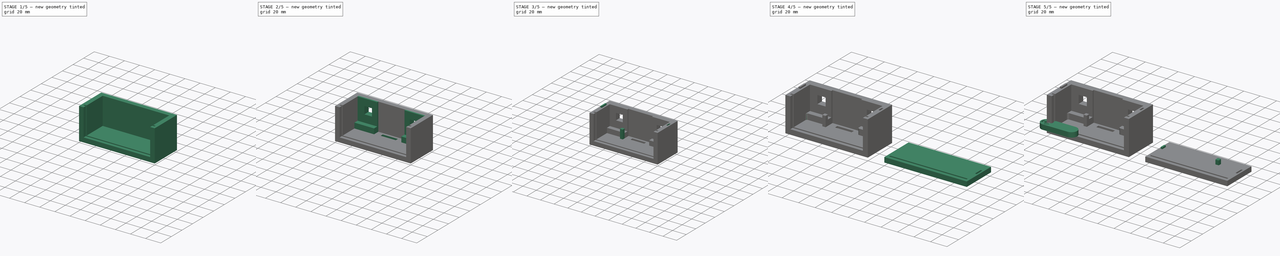
[diagram: build sequence overview — one tinted view per stage of 5, left to right]
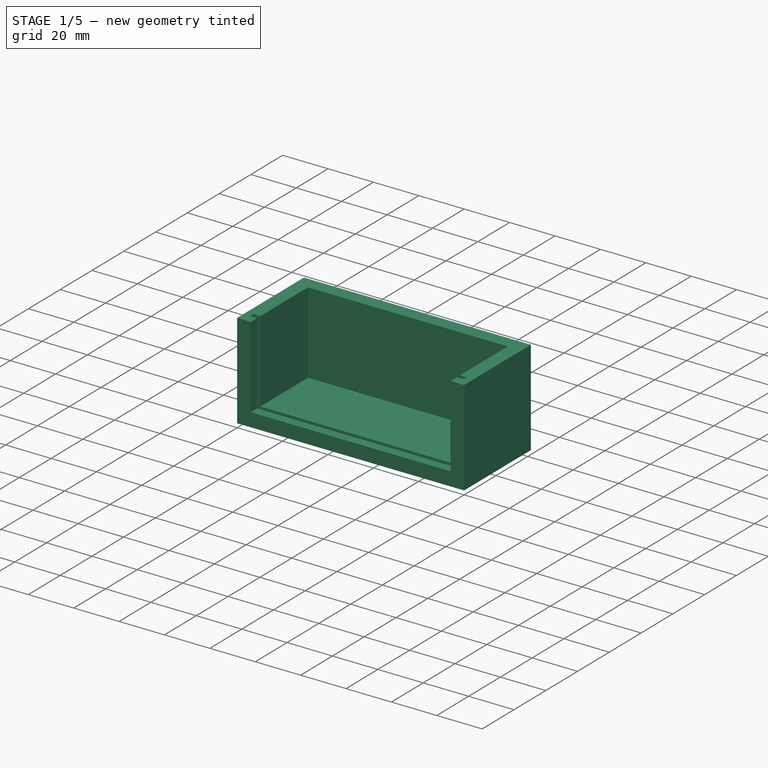
[diagram: stage 1 of 5 — iso view after this stage's code; geometry added in this stage tinted green]
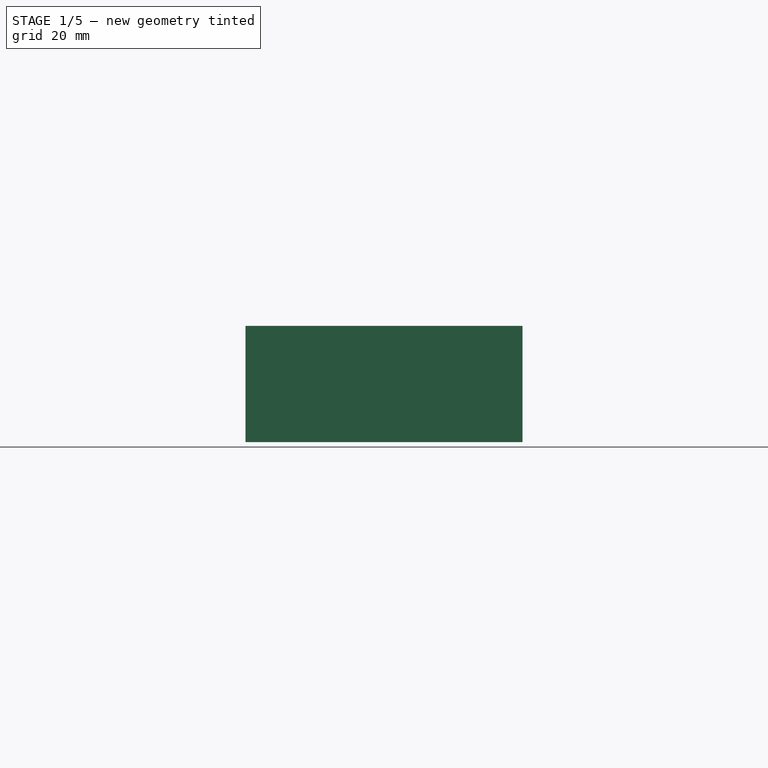
[diagram: stage 1 of 5 — front view after this stage's code; geometry added in this stage tinted green]
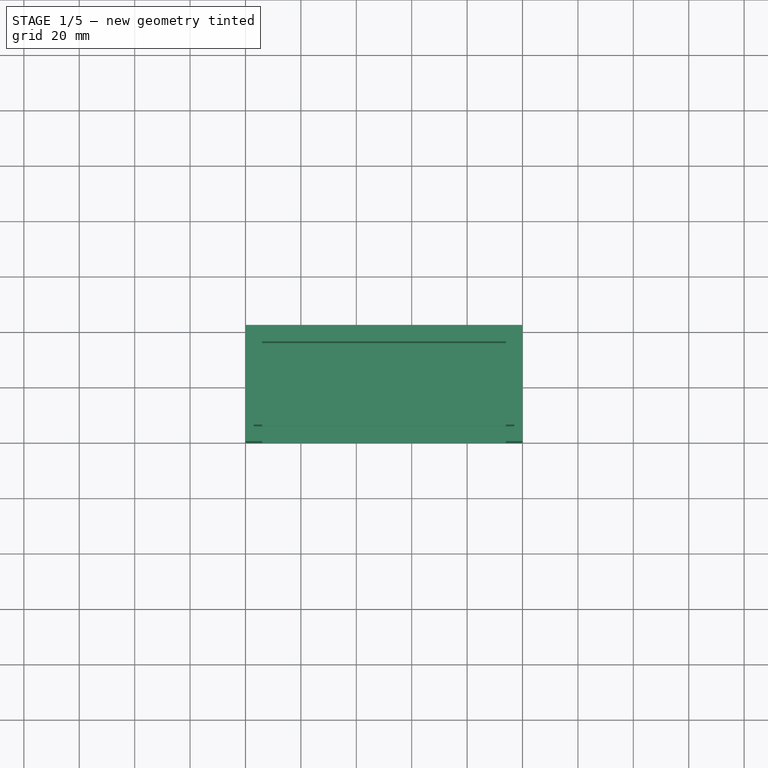
[diagram: stage 1 of 5 — top view after this stage's code; geometry added in this stage tinted green]
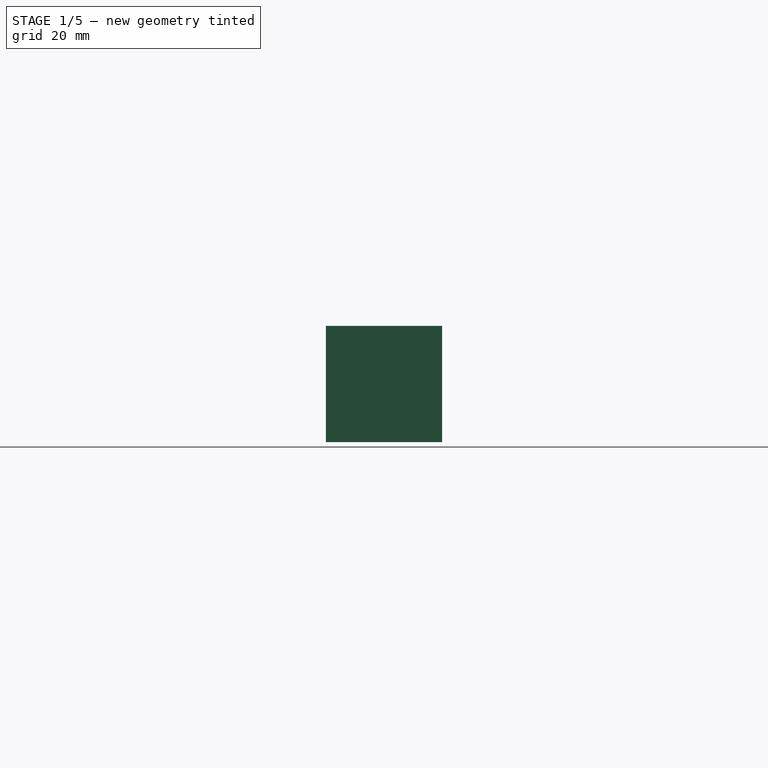
[diagram: stage 1 of 5 — right view after this stage's code; geometry added in this stage tinted green]
FCSTD DOCUMENT  (FreeCAD 0.18R4 (GitTag))
Label: Unununium Camera Casing
License: All rights reserved
LicenseURL: http://en.wikipedia.org/wiki/All_rights_reserved
objects: Sketcher::SketchObject×22, PartDesign::Pad×12, PartDesign::Pocket×10, PartDesign::LinearPattern×4, PartDesign::Body×3, Part::Fillet×3, Part::Box×2, PartDesign::PolarPattern×2, PartDesign::ShapeBinder×1, PartDesign::Plane×1, Part::Cut×1, PartDesign::FeatureBase×1, PartDesign::Line×1
note: 85 computed .brp shape members not serialized (recipe doc carries the construction recipe); baked Part::Feature solids carry a one-line shape summary decoded from their .brp

FEATURE [Sketcher::SketchObject] Sketch
  MapMode = 5
  Support = -> [XY_Plane]
  sketch-geometry (4):
    g0: LineSegment StartX=0 StartY=0 StartZ=0 EndX=100 EndY=0 EndZ=0
    g1: LineSegment StartX=100 StartY=0 StartZ=0 EndX=100 EndY=42 EndZ=0
    g2: LineSegment StartX=100 StartY=42 StartZ=0 EndX=0 EndY=42 EndZ=0
    g3: LineSegment StartX=0 StartY=42 StartZ=0 EndX=0 EndY=0 EndZ=0
  constraints (11):
    c: Coincident(g0,g1)
    c: Coincident(g1,g2)
    c: Coincident(g2,g3)
    c: Coincident(g3,g0)
    c: Horizontal(g0)
    c: Horizontal(g2)
    c: Vertical(g1)
    c: Vertical(g3)
    c: DistanceX(g2,g2) = 100
    c: Coincident(g0,g-1)
    c: DistanceY(g3,g3) = 42
FEATURE [PartDesign::Pad] Pad
  Length = 6
  Length2 = 100
  Profile = -> Sketch
  Reversed = true
  Type = 0
FEATURE [Sketcher::SketchObject] Sketch001
  ExternalGeometry = -> [Pad]
  MapMode = 5
  Support = -> [Pad]
  sketch-geometry (4):
    g0: LineSegment StartX=3 StartY=6 StartZ=0 EndX=97 EndY=6 EndZ=0
    g1: LineSegment StartX=97 StartY=6 StartZ=0 EndX=97 EndY=4 EndZ=0
    g2: LineSegment StartX=97 StartY=4 StartZ=0 EndX=3 EndY=4 EndZ=0
    g3: LineSegment StartX=3 StartY=4 StartZ=0 EndX=3 EndY=6 EndZ=0
  constraints (12):
    c: Coincident(g0,g1)
    c: Coincident(g1,g2)
    c: Coincident(g2,g3)
    c: Coincident(g3,g0)
    c: Horizontal(g0)
    c: Horizontal(g2)
    c: Vertical(g1)
    c: Vertical(g3)
    c: DistanceX(g-1,g2) = 3
    c: DistanceX(g1,g-3) = 3
    c: DistanceY(g-1,g2) = 4
    c: DistanceY(g3,g3) = 2
FEATURE [PartDesign::Pocket] Pocket
  BaseFeature = -> Pad
  Length = 3
  Length2 = 100
  Profile = -> Sketch001
  Type = 0
FEATURE [Sketcher::SketchObject] Sketch002
  ExternalGeometry = -> [Pocket]
  MapMode = 5
  Support = -> [Pocket]
  sketch-geometry (4):
    g0: LineSegment StartX=0 StartY=42 StartZ=0 EndX=100 EndY=42 EndZ=0
    g1: LineSegment StartX=100 StartY=42 StartZ=0 EndX=100 EndY=36 EndZ=0
    g2: LineSegment StartX=100 StartY=36 StartZ=0 EndX=0 EndY=36 EndZ=0
    g3: LineSegment StartX=0 StartY=36 StartZ=0 EndX=0 EndY=42 EndZ=0
  constraints (11):
    c: Coincident(g0,g1)
    c: Coincident(g1,g2)
    c: Coincident(g2,g3)
    c: Coincident(g3,g0)
    c: Horizontal(g0)
    c: Horizontal(g2)
    c: Vertical(g1)
    c: Vertical(g3)
    c: Coincident(g0,g-4)
    c: DistanceY(g3,g3) = 6
    c: DistanceX(g0,g0) = 100
FEATURE [PartDesign::Pad] Pad001
  BaseFeature = -> Pocket
  Length = 36
  Length2 = 100
  Profile = -> Sketch002
  Type = 0
FEATURE [Sketcher::SketchObject] Sketch003
  ExternalGeometry = -> [Pad001]
  MapMode = 5
  Support = -> [Pad001]
  sketch-geometry (4):
    g0: LineSegment StartX=0 StartY=36 StartZ=0 EndX=6 EndY=36 EndZ=0
    g1: LineSegment StartX=6 StartY=36 StartZ=0 EndX=6 EndY=0 EndZ=0
    g2: LineSegment StartX=6 StartY=0 StartZ=0 EndX=0 EndY=0 EndZ=0
    g3: LineSegment StartX=0 StartY=0 StartZ=0 EndX=0 EndY=36 EndZ=0
  constraints (11):
    c: Coincident(g0,g1)
    c: Coincident(g1,g2)
    c: Coincident(g2,g3)
    c: Coincident(g3,g0)
    c: Horizontal(g0)
    c: Horizontal(g2)
    c: Vertical(g1)
    c: Vertical(g3)
    c: Coincident(g2,g-1)
    c: DistanceX(g2,g2) = 6
    c: DistanceY(g3,g3) = 36
FEATURE [PartDesign::Pad] Pad002
  BaseFeature = -> Pad001
  Length = 36
  Length2 = 100
  Profile = -> Sketch003
  Type = 0
FEATURE [Sketcher::SketchObject] Sketch004
  ExternalGeometry = -> [Pad002]
  MapMode = 5
  Placement = pos=(6,0,0) rot=(0.57735,0.57735,0.57735;2.0944rad)
  Support = -> [Pad002]
  sketch-geometry (4):
    g0: LineSegment StartX=4 StartY=36 StartZ=0 EndX=6 EndY=36 EndZ=0
    g1: LineSegment StartX=6 StartY=36 StartZ=0 EndX=6 EndY=0 EndZ=0
    g2: LineSegment StartX=6 StartY=0 StartZ=0 EndX=4 EndY=0 EndZ=0
    g3: LineSegment StartX=4 StartY=0 StartZ=0 EndX=4 EndY=36 EndZ=0
  constraints (11):
    c: Coincident(g0,g1)
    c: Coincident(g1,g2)
    c: Coincident(g2,g3)
    c: Coincident(g3,g0)
    c: Horizontal(g0)
    c: Horizontal(g2)
    c: Vertical(g1)
    c: Vertical(g3)
    c: Coincident(g1,g-3)
    c: DistanceX(g0,g0) = 2
    c: DistanceY(g1,g1) = 36
FEATURE [PartDesign::Pocket] Pocket001
  BaseFeature = -> Pad002
  Length = 3
  Length2 = 100
  Profile = -> Sketch004
  Type = 0
FEATURE [PartDesign::LinearPattern] LinearPattern
  BaseFeature = -> Pocket001
  Direction = -> Sketch003 [H_Axis]
  Length = 94
  Occurrences = 2
  Originals = -> [Pad002]
FEATURE [Sketcher::SketchObject] Sketch005
  ExternalGeometry = -> [LinearPattern]
  MapMode = 5
  Placement = pos=(94,0,0) rot=(0.57735,-0.57735,-0.57735;2.0944rad)
  Support = -> [LinearPattern]
  sketch-geometry (4):
    g0: LineSegment StartX=-4 StartY=0 StartZ=0 EndX=-6 EndY=0 EndZ=0
    g1: LineSegment StartX=-6 StartY=0 StartZ=0 EndX=-6 EndY=36 EndZ=0
    g2: LineSegment StartX=-6 StartY=36 StartZ=0 EndX=-4 EndY=36 EndZ=0
    g3: LineSegment StartX=-4 StartY=36 StartZ=0 EndX=-4 EndY=0 EndZ=0
  constraints (11):
    c: Coincident(g0,g1)
    c: Coincident(g1,g2)
    c: Coincident(g2,g3)
    c: Coincident(g3,g0)
    c: Horizontal(g0)
    c: Horizontal(g2)
    c: Vertical(g1)
    c: Vertical(g3)
    c: DistanceX(g2,g2) = 2
    c: Coincident(g-3,g0)
    c: DistanceY(g3,g3) = 36
FEATURE [PartDesign::Pocket] Pocket002
  BaseFeature = -> LinearPattern
  Length = 3
  Length2 = 100
  Profile = -> Sketch005
  Type = 0
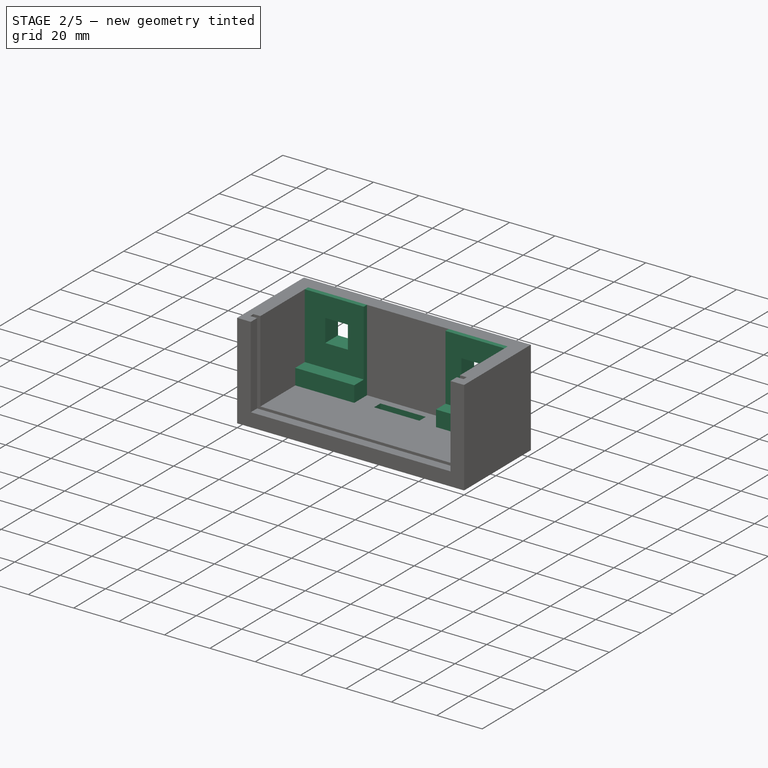
[diagram: stage 2 of 5 — iso view after this stage's code; geometry added in this stage tinted green]
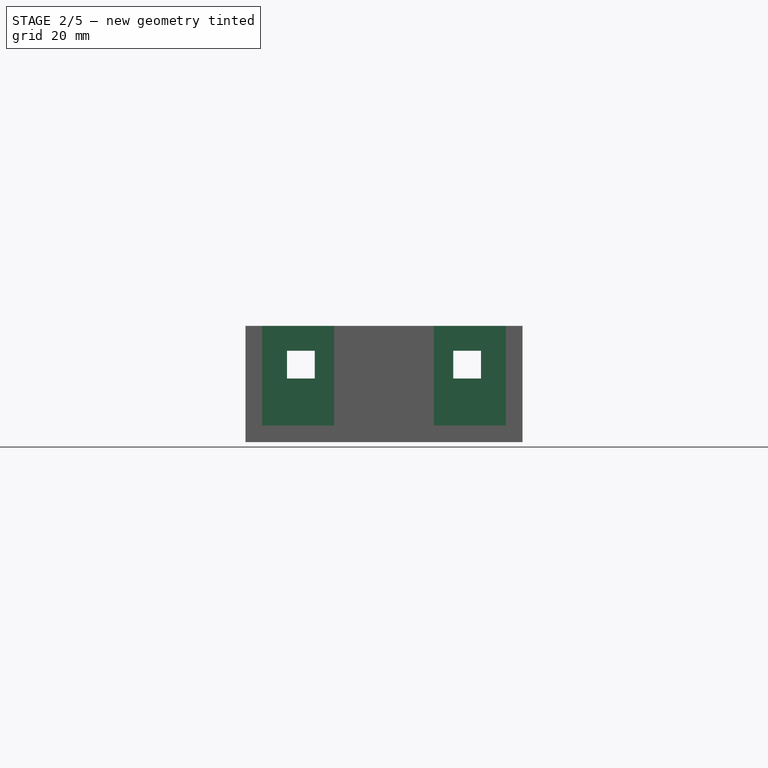
[diagram: stage 2 of 5 — front view after this stage's code; geometry added in this stage tinted green]
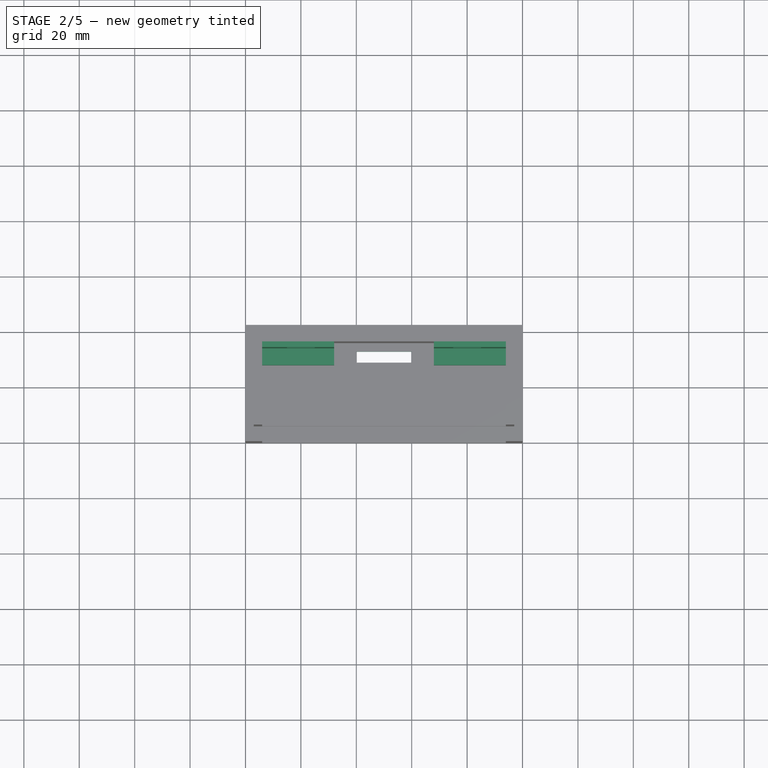
[diagram: stage 2 of 5 — top view after this stage's code; geometry added in this stage tinted green]
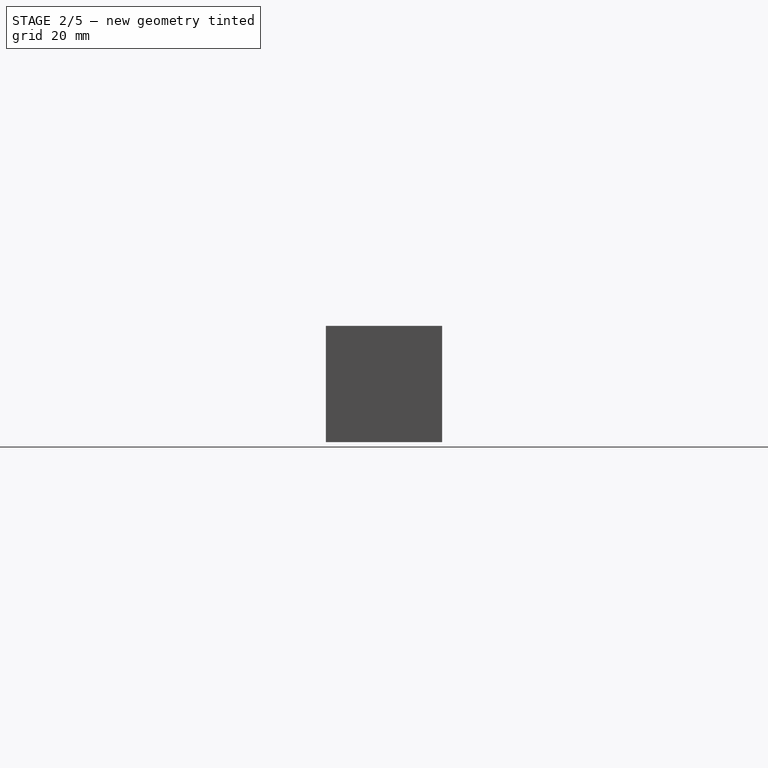
[diagram: stage 2 of 5 — right view after this stage's code; geometry added in this stage tinted green]
FEATURE [Sketcher::SketchObject] Sketch006
  ExternalGeometry = -> [Pocket002]
  MapMode = 5
  Support = -> [Pocket002]
  sketch-geometry (4):
    g0: LineSegment StartX=40 StartY=33 StartZ=0 EndX=60 EndY=33 EndZ=0
    g1: LineSegment StartX=60 StartY=33 StartZ=0 EndX=60 EndY=29 EndZ=0
    g2: LineSegment StartX=60 StartY=29 StartZ=0 EndX=40 EndY=29 EndZ=0
    g3: LineSegment StartX=40 StartY=29 StartZ=0 EndX=40 EndY=33 EndZ=0
  constraints (12):
    c: Coincident(g0,g1)
    c: Coincident(g1,g2)
    c: Coincident(g2,g3)
    c: Coincident(g3,g0)
    c: Horizontal(g0)
    c: Horizontal(g2)
    c: Vertical(g1)
    c: Vertical(g3)
    c: DistanceX(g2,g2) = 20
    c: DistanceY(g3,g3) = 4
    c: DistanceX(g-1,g2) = 40
    c: DistanceY(g0,g-3) = 9
FEATURE [PartDesign::Pocket] Pocket003
  BaseFeature = -> Pocket002
  Length = 0
  Length2 = 100
  Profile = -> Sketch006
  Type = 3
  UpToFace = -> Pocket002 [Face7]
FEATURE [Sketcher::SketchObject] Sketch007
  ExternalGeometry = -> [Pocket003]
  MapMode = 5
  Placement = pos=(0,36,0) rot=(1,0,0;1.5708rad)
  Support = -> [Pocket003]
  sketch-geometry (4):
    g0: LineSegment StartX=6 StartY=0 StartZ=0 EndX=32 EndY=0 EndZ=0
    g1: LineSegment StartX=32 StartY=0 StartZ=0 EndX=32 EndY=7 EndZ=0
    g2: LineSegment StartX=32 StartY=7 StartZ=0 EndX=6 EndY=7 EndZ=0
    g3: LineSegment StartX=6 StartY=7 StartZ=0 EndX=6 EndY=0 EndZ=0
  constraints (11):
    c: Coincident(g0,g1)
    c: Coincident(g1,g2)
    c: Coincident(g2,g3)
    c: Coincident(g3,g0)
    c: Horizontal(g0)
    c: Horizontal(g2)
    c: Vertical(g1)
    c: Vertical(g3)
    c: DistanceY(g1,g1) = 7
    c: Coincident(g-3,g0)
    c: DistanceX(g2,g2) = 26
FEATURE [PartDesign::Pad] Pad003
  BaseFeature = -> Pocket003
  Length = 8
  Length2 = 100
  Profile = -> Sketch007
  Type = 0
FEATURE [PartDesign::LinearPattern] LinearPattern001
  BaseFeature = -> Pad003
  Direction = -> Sketch007 [H_Axis]
  Length = 62
  Occurrences = 2
  Originals = -> [Pad003]
FEATURE [PartDesign::ShapeBinder] CopyFillet
  TraceSupport = false
FEATURE [Sketcher::SketchObject] Sketch008
  ExternalGeometry = -> [CopyFillet]
  MapMode = 5
  Placement = pos=(0,36,0) rot=(1,0,0;1.5708rad)
  Support = -> [CopyFillet]
  sketch-geometry (4):
    g0: LineSegment StartX=6 StartY=36 StartZ=0 EndX=32 EndY=36 EndZ=0
    g1: LineSegment StartX=32 StartY=36 StartZ=0 EndX=32 EndY=7 EndZ=0
    g2: LineSegment StartX=32 StartY=7 StartZ=0 EndX=6 EndY=7 EndZ=0
    g3: LineSegment StartX=6 StartY=7 StartZ=0 EndX=6 EndY=36 EndZ=0
  constraints (11):
    c: Coincident(g0,g1)
    c: Coincident(g1,g2)
    c: Coincident(g2,g3)
    c: Coincident(g3,g0)
    c: Horizontal(g0)
    c: Horizontal(g2)
    c: Vertical(g1)
    c: Vertical(g3)
    c: DistanceX(g0,g0) = 26
    c: Coincident(g-3,g2)
    c: DistanceY(g1,g1) = 29
FEATURE [PartDesign::Pad] Pad004
  BaseFeature = -> LinearPattern001
  Length = 2
  Length2 = 100
  Profile = -> Sketch008
  Type = 0
FEATURE [PartDesign::LinearPattern] LinearPattern002
  BaseFeature = -> Pad004
  Direction = -> Sketch008 [H_Axis]
  Length = 62
  Occurrences = 2
  Originals = -> [Pad004]
FEATURE [Sketcher::SketchObject] Sketch009
  MapMode = 5
  Placement = pos=(0,34,-8.5e-15) rot=(1,0,0;1.5708rad)
  Support = -> [LinearPattern002]
  sketch-geometry (4):
    g0: LineSegment StartX=15 StartY=27 StartZ=0 EndX=25 EndY=27 EndZ=0
    g1: LineSegment StartX=25 StartY=27 StartZ=0 EndX=25 EndY=17 EndZ=0
    g2: LineSegment StartX=25 StartY=17 StartZ=0 EndX=15 EndY=17 EndZ=0
    g3: LineSegment StartX=15 StartY=17 StartZ=0 EndX=15 EndY=27 EndZ=0
  constraints (12):
    c: Coincident(g0,g1)
    c: Coincident(g1,g2)
    c: Coincident(g2,g3)
    c: Coincident(g3,g0)
    c: Horizontal(g0)
    c: Horizontal(g2)
    c: Vertical(g1)
    c: Vertical(g3)
    c: DistanceY(g-1,g2) = 17
    c: DistanceX(g2,g2) = 10
    c: DistanceY(g1,g1) = 10
    c: DistanceX(g-1,g2) = 15
FEATURE [PartDesign::Pocket] Pocket004
  BaseFeature = -> LinearPattern002
  Length = 0
  Length2 = 100
  Profile = -> Sketch009
  Type = 3
  UpToFace = -> LinearPattern002 [Face22]
FEATURE [PartDesign::LinearPattern] LinearPattern003
  BaseFeature = -> Pocket004
  Direction = -> Sketch009 [H_Axis]
  Length = 60
  Occurrences = 2
  Originals = -> [Pocket004]
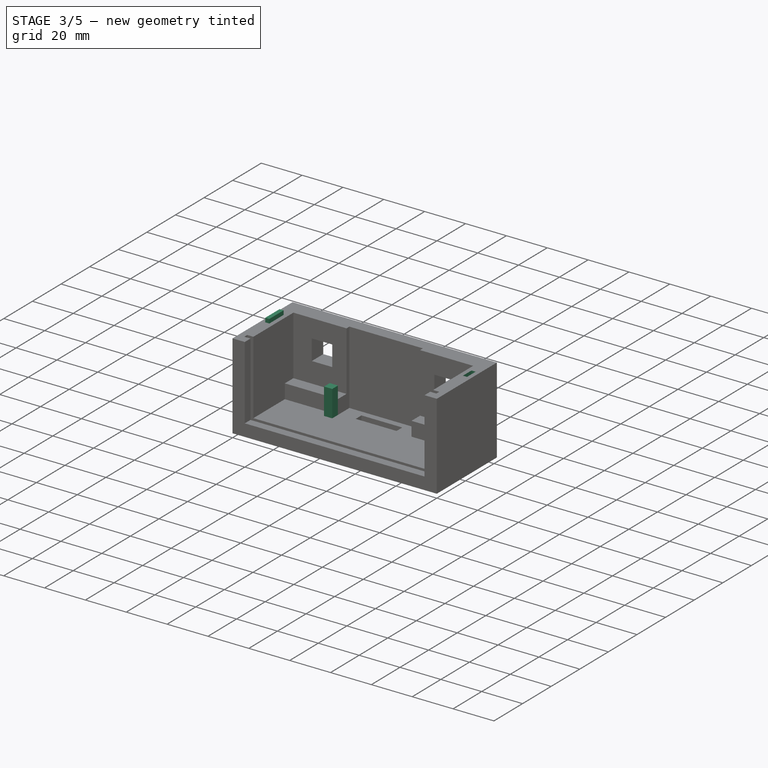
[diagram: stage 3 of 5 — iso view after this stage's code; geometry added in this stage tinted green]
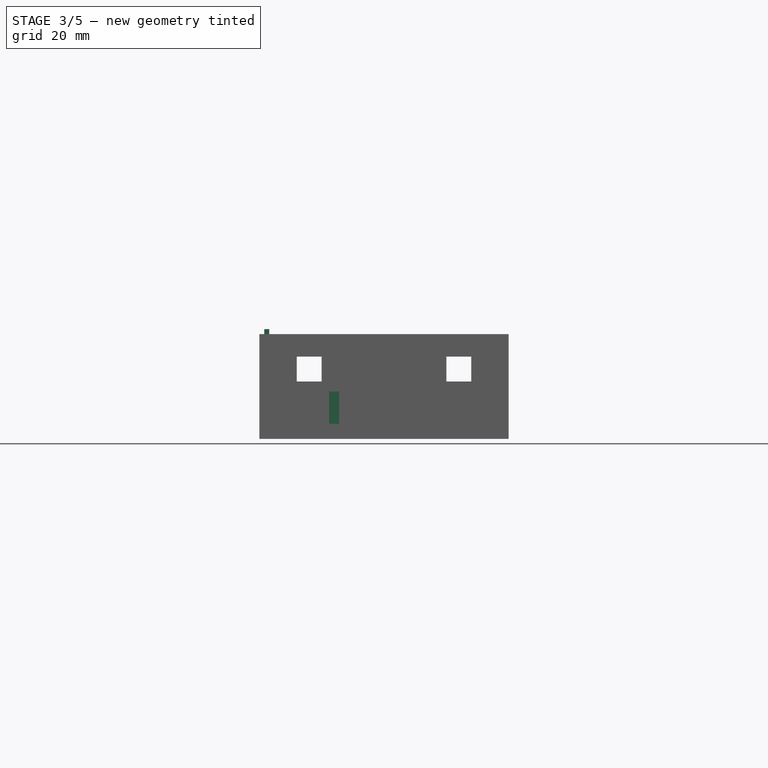
[diagram: stage 3 of 5 — front view after this stage's code; geometry added in this stage tinted green]
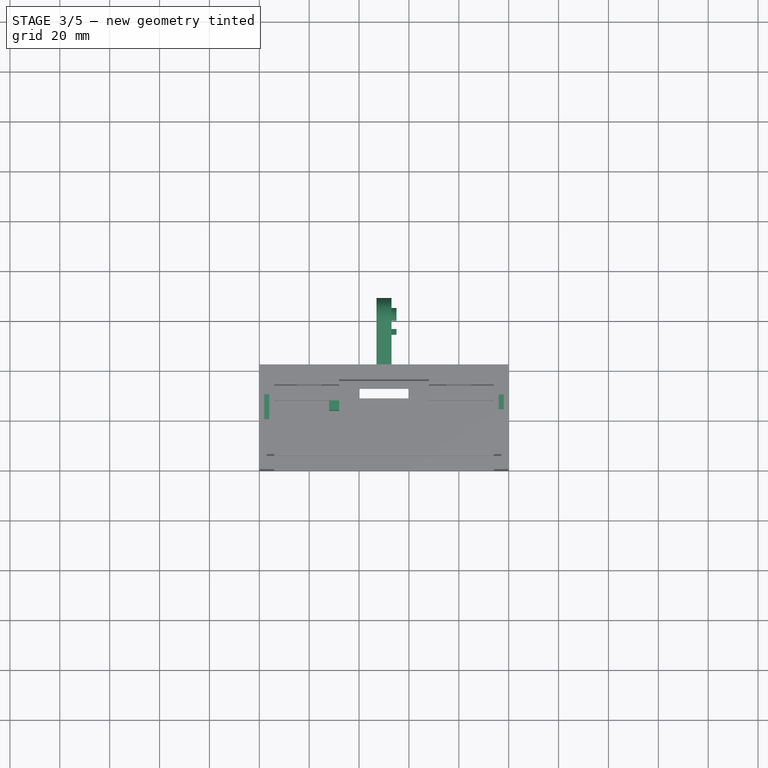
[diagram: stage 3 of 5 — top view after this stage's code; geometry added in this stage tinted green]
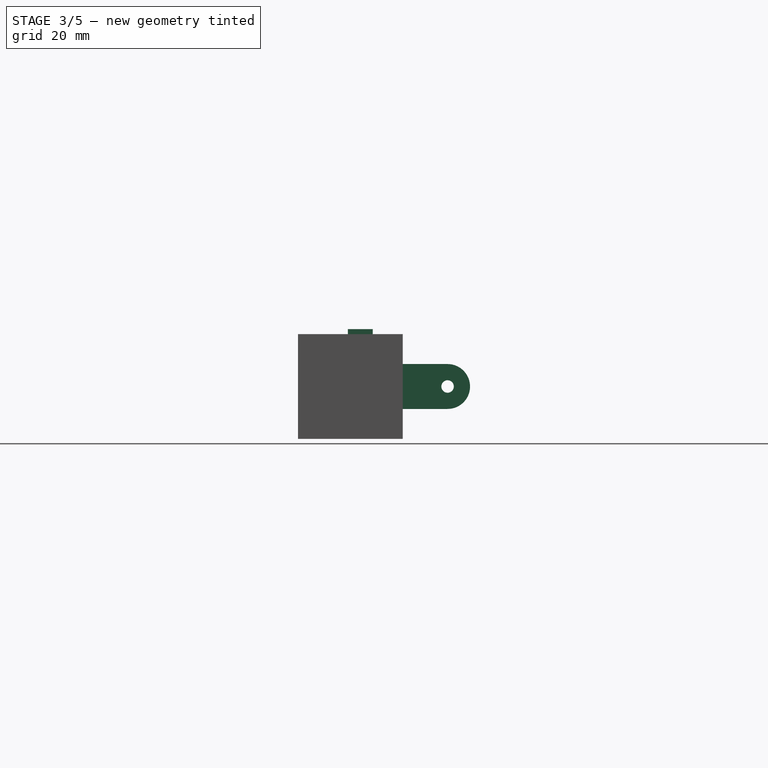
[diagram: stage 3 of 5 — right view after this stage's code; geometry added in this stage tinted green]
FEATURE [PartDesign::Plane] DatumPlane
  AttachmentOffset = pos=(0,0,-50) rot=(0,0,1;0rad)
  Length = 91.2451
  MapMode = 5
  Placement = pos=(50,0,0) rot=(0.57735,0.57735,0.57735;2.0944rad)
  ResizeMode = 0
  Support = -> [LinearPattern003]
  Width = 60.3107
FEATURE [Sketcher::SketchObject] Sketch010
  MapMode = 5
  Placement = pos=(50,0,0) rot=(0.57735,0.57735,0.57735;2.0944rad)
  Support = -> [DatumPlane]
  sketch-geometry (4):
    g0: LineSegment StartX=60 StartY=6 StartZ=0 EndX=42 EndY=6 EndZ=0
    g1: LineSegment StartX=42 StartY=6 StartZ=0 EndX=42 EndY=24 EndZ=0
    g2: LineSegment StartX=42 StartY=24 StartZ=0 EndX=60 EndY=24 EndZ=0
    g3: ArcOfCircle CenterX=60 CenterY=15 CenterZ=0 NormalX=0 NormalY=0 NormalZ=1 AngleXU=0 Radius=9 StartAngle=4.71239 EndAngle=7.85398
  constraints (11):
    c: Coincident(g0,g1)
    c: Coincident(g1,g2)
    c: Horizontal(g2)
    c: Horizontal(g0)
    c: Vertical(g1)
    c: DistanceX(g-1,g0) = 42
    c: Tangent(g3,g0) = 1.5708
    c: Tangent(g3,g2) = 1.5708
    c: DistanceY(g1,g1) = 18
    c: DistanceY(g-1,g0) = 6
    c: DistanceX(g2,g2) = 18
FEATURE [PartDesign::Pad] Pad005
  BaseFeature = -> LinearPattern003
  Length = 6
  Length2 = 100
  Midplane = true
  Profile = -> Sketch010
  Type = 0
FEATURE [Sketcher::SketchObject] Sketch011
  ExternalGeometry = -> [Pad005]
  MapMode = 5
  Placement = pos=(53,0,0) rot=(0.57735,0.57735,0.57735;2.0944rad)
  Support = -> [Pad005]
  sketch-geometry (1):
    g0: Circle CenterX=60 CenterY=15 CenterZ=0 NormalX=0 NormalY=0 NormalZ=1 AngleXU=0 Radius=2.5
  constraints (2):
    c: Coincident(g0,g-3)
    c: Radius(g0) = 2.5
FEATURE [PartDesign::Pocket] Pocket005
  BaseFeature = -> Pad005
  Length = 5
  Length2 = 100
  Profile = -> Sketch011
  Type = 1
FEATURE [Sketcher::SketchObject] Sketch012
  MapMode = 5
  Placement = pos=(0,0,36) rot=(0,0,1;0rad)
  Support = -> [Pocket005]
  sketch-geometry (4):
    g0: LineSegment StartX=2 StartY=30 StartZ=0 EndX=4 EndY=30 EndZ=0
    g1: LineSegment StartX=4 StartY=30 StartZ=0 EndX=4 EndY=20 EndZ=0
    g2: LineSegment StartX=4 StartY=20 StartZ=0 EndX=2 EndY=20 EndZ=0
    g3: LineSegment StartX=2 StartY=20 StartZ=0 EndX=2 EndY=30 EndZ=0
  constraints (12):
    c: Coincident(g0,g1)
    c: Coincident(g1,g2)
    c: Coincident(g2,g3)
    c: Coincident(g3,g0)
    c: Horizontal(g0)
    c: Horizontal(g2)
    c: Vertical(g1)
    c: Vertical(g3)
    c: DistanceX(g0,g0) = 2
    c: DistanceY(g1,g1) = 10
    c: DistanceY(g-1,g1) = 20
    c: DistanceX(g-1,g2) = 2
FEATURE [PartDesign::Pad] Pad006
  BaseFeature = -> Pocket005
  Length = 2
  Length2 = 100
  Profile = -> Sketch012
  Type = 0
FEATURE [Sketcher::SketchObject] Sketch014
  ExternalGeometry = -> [Pad006]
  MapMode = 5
  Placement = pos=(0,0,36) rot=(0,0,1;0rad)
  Support = -> [Pad006]
  sketch-geometry (4):
    g0: LineSegment StartX=96 StartY=30 StartZ=0 EndX=98 EndY=30 EndZ=0
    g1: LineSegment StartX=98 StartY=30 StartZ=0 EndX=98 EndY=24 EndZ=0
    g2: LineSegment StartX=98 StartY=24 StartZ=0 EndX=96 EndY=24 EndZ=0
    g3: LineSegment StartX=96 StartY=24 StartZ=0 EndX=96 EndY=30 EndZ=0
  constraints (12):
    c: Coincident(g0,g1)
    c: Coincident(g1,g2)
    c: Coincident(g2,g3)
    c: Coincident(g3,g0)
    c: Horizontal(g0)
    c: Horizontal(g2)
    c: Vertical(g1)
    c: Vertical(g3)
    c: DistanceY(g-1,g0) = 30
    c: DistanceY(g1,g1) = 6
    c: DistanceX(g2,g2) = 2
    c: DistanceX(g1,g-3) = 2
FEATURE [PartDesign::Pocket] Pocket007
  BaseFeature = -> Pad006
  Length = 2
  Length2 = 100
  Profile = -> Sketch014
  Type = 0
FEATURE [Sketcher::SketchObject] Sketch018
  ExternalGeometry = -> [Pocket007]
  MapMode = 5
  Placement = pos=(53,0,0) rot=(0.57735,0.57735,0.57735;2.0944rad)
  Support = -> [Pocket007]
  sketch-geometry (6):
    g0: ArcOfCircle CenterX=60 CenterY=15 CenterZ=0 NormalX=0 NormalY=0 NormalZ=1 AngleXU=0 Radius=5.73205 StartAngle=2.61799 EndAngle=3.66519
    g1: ArcOfCircle CenterX=60 CenterY=15 CenterZ=0 NormalX=0 NormalY=0 NormalZ=1 AngleXU=0 Radius=4 StartAngle=2.61799 EndAngle=3.66519
    g2: LineSegment StartX=55.0359 StartY=12.134 StartZ=0 EndX=56.5359 EndY=13 EndZ=0
    g3: LineSegment StartX=56.5359 StartY=17 StartZ=0 EndX=55.0359 EndY=17.866 EndZ=0
    g4: LineSegment [constr] StartX=56.5359 StartY=17 StartZ=0 EndX=60 EndY=15 EndZ=0
    g5: LineSegment [constr] StartX=60 StartY=15 StartZ=0 EndX=59 EndY=15 EndZ=0
  constraints (18):
    c: Perpendicular(g0,g2)
    c: Perpendicular(g0,g3)
    c: Coincident(g-3,g0)
    c: Angle(g3,g2) = 1.0472
    c: Coincident(g5,g0)
    c: DistanceX(g5,g5) = 1
    c: Coincident(g0,g3)
    c: Coincident(g0,g2)
    c: Coincident(g1,g3)
    c: Coincident(g1,g2)
    c: DistanceX(g2,g2) = 1.5
    c: Coincident(g1,g4)
    c: Equal(g3,g2)
    c: Coincident(g4,g0)
    c: Angle(g4,g5) = 0.523599
    c: Distance(g4) = 4
    c: Coincident(g1,g0)
    c: Horizontal(g5)
FEATURE [PartDesign::Pad] Pad009
  BaseFeature = -> Pocket007
  Length = 2
  Length2 = 100
  Profile = -> Sketch018
  Type = 0
FEATURE [PartDesign::Line] DatumLine
  AttacherType = Attacher::AttachEngineLine
  MapMode = 19
  Placement = pos=(53,60,15) rot=(0.57735,0.57735,0.57735;2.0944rad)
  Support = -> [Pad009]
FEATURE [PartDesign::PolarPattern] PolarPattern
  Angle = 360
  Axis = -> DatumLine
  BaseFeature = -> Pad009
  Occurrences = 3
  Originals = -> [Pad009]
FEATURE [PartDesign::Body] Body002  label="Connector"
  Group = -> [Sketch016,Pad008,Sketch017,Pocket008,Sketch019,Pocket009,PolarPattern001]
  Origin = -> Origin002
  Placement = pos=(70,60,0) rot=(0,0,1;0rad)
  Tip = -> PolarPattern001
FEATURE [Sketcher::SketchObject] Sketch020
  ExternalGeometry = -> [PolarPattern]
  MapMode = 5
  Support = -> [PolarPattern]
  sketch-geometry (4):
    g0: LineSegment StartX=28 StartY=28 StartZ=0 EndX=32 EndY=28 EndZ=0
    g1: LineSegment StartX=32 StartY=28 StartZ=0 EndX=32 EndY=24 EndZ=0
    g2: LineSegment StartX=32 StartY=24 StartZ=0 EndX=28 EndY=24 EndZ=0
    g3: LineSegment StartX=28 StartY=24 StartZ=0 EndX=28 EndY=28 EndZ=0
  constraints (11):
    c: Coincident(g0,g1)
    c: Coincident(g1,g2)
    c: Coincident(g2,g3)
    c: Coincident(g3,g0)
    c: Horizontal(g0)
    c: Horizontal(g2)
    c: Vertical(g1)
    c: Vertical(g3)
    c: DistanceX(g0,g0) = 4
    c: DistanceY(g1,g1) = 4
    c: Coincident(g-3,g0)
FEATURE [PartDesign::Pad] Pad010
  BaseFeature = -> PolarPattern
  Length = 13
  Length2 = 100
  Profile = -> Sketch020
  Type = 0
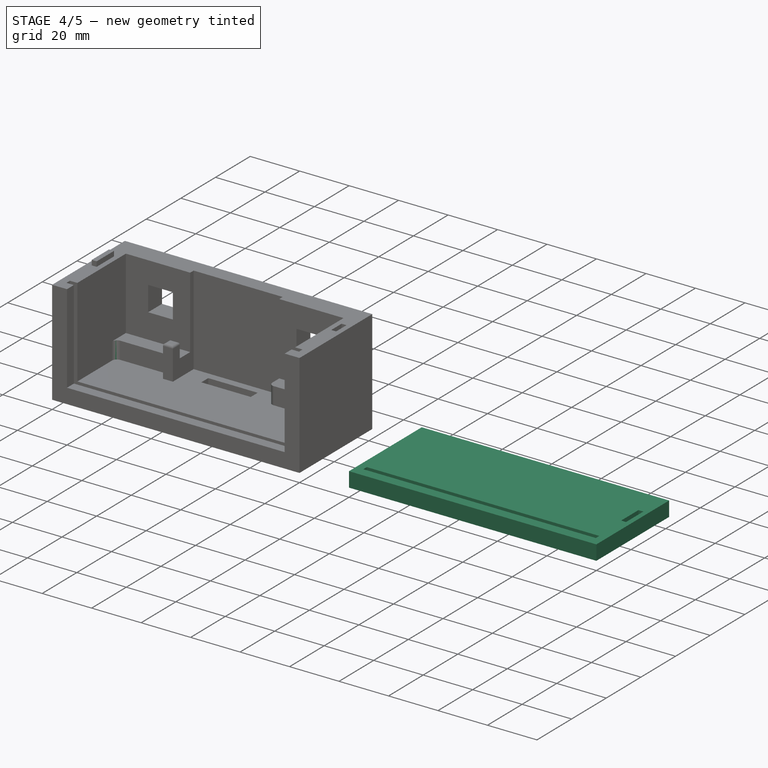
[diagram: stage 4 of 5 — iso view after this stage's code; geometry added in this stage tinted green]
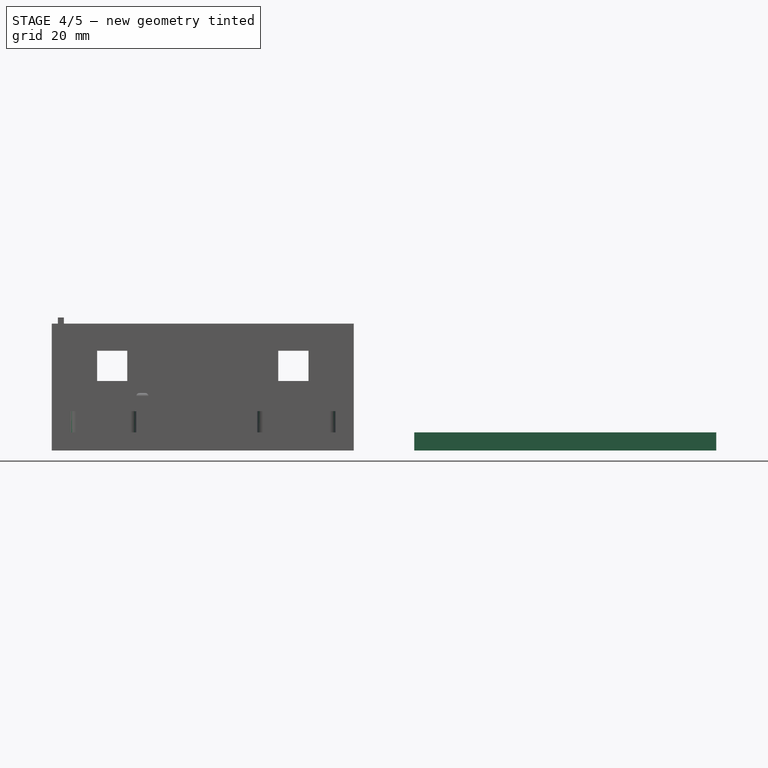
[diagram: stage 4 of 5 — front view after this stage's code; geometry added in this stage tinted green]
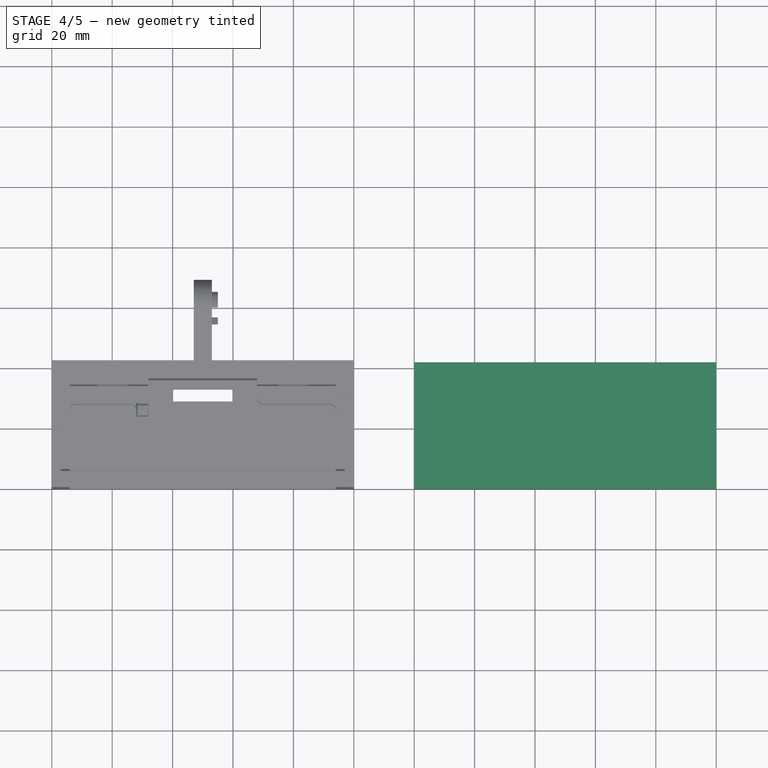
[diagram: stage 4 of 5 — top view after this stage's code; geometry added in this stage tinted green]
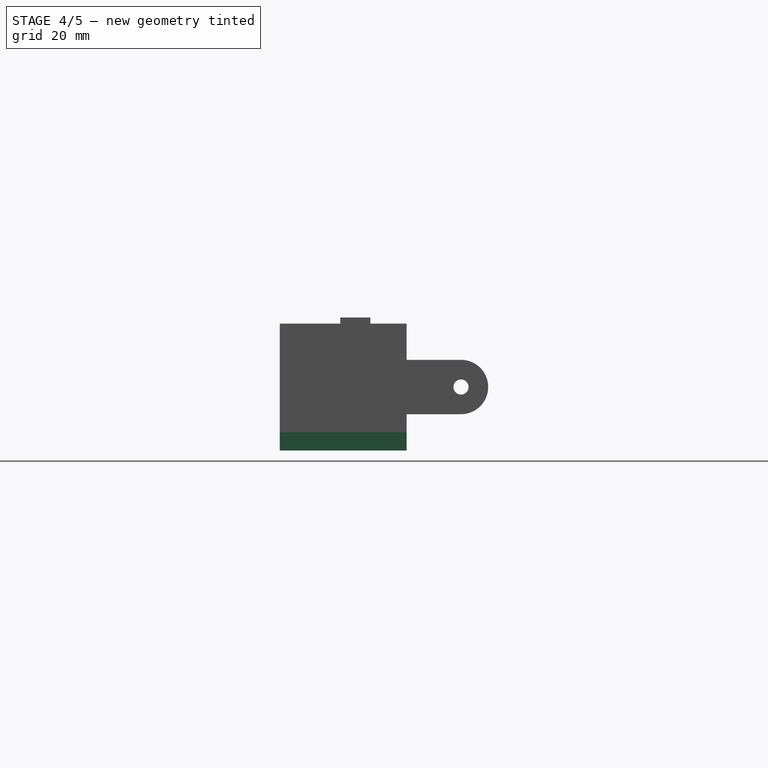
[diagram: stage 4 of 5 — right view after this stage's code; geometry added in this stage tinted green]
FEATURE [Part::Box] Box002  label="Cube002"
  AttacherType = Attacher::AttachEngine3D
  Height = 6
  Length = 100
  Placement = pos=(120,0,-6) rot=(0,0,1;0rad)
  Width = 42
FEATURE [Part::Box] Box003  label="Cube003"
  AttacherType = Attacher::AttachEngine3D
  Height = 3
  Length = 94
  Placement = pos=(123,4,-3) rot=(0,0,1;0rad)
  Width = 2
FEATURE [Part::Cut] Cut001  label="Roof"
  Base = -> Box002
  Tool = -> Box003
FEATURE [PartDesign::FeatureBase] BaseFeature
  BaseFeature = -> Cut001
FEATURE [Sketcher::SketchObject] Sketch013
  ExternalGeometry = -> [BaseFeature]
  MapMode = 5
  Support = -> [BaseFeature]
  sketch-geometry (4):
    g0: LineSegment StartX=216 StartY=30 StartZ=0 EndX=218 EndY=30 EndZ=0
    g1: LineSegment StartX=218 StartY=30 StartZ=0 EndX=218 EndY=20 EndZ=0
    g2: LineSegment StartX=218 StartY=20 StartZ=0 EndX=216 EndY=20 EndZ=0
    g3: LineSegment StartX=216 StartY=20 StartZ=0 EndX=216 EndY=30 EndZ=0
  constraints (12):
    c: Coincident(g0,g1)
    c: Coincident(g1,g2)
    c: Coincident(g2,g3)
    c: Coincident(g3,g0)
    c: Horizontal(g0)
    c: Horizontal(g2)
    c: Vertical(g1)
    c: Vertical(g3)
    c: DistanceX(g2,g2) = 2
    c: DistanceX(g1,g-3) = 2
    c: DistanceY(g1,g1) = 10
    c: DistanceY(g-3,g1) = 20
FEATURE [PartDesign::Pocket] Pocket006
  BaseFeature = -> BaseFeature
  Length = 2
  Length2 = 100
  Profile = -> Sketch013
  Type = 0
FEATURE [PartDesign::Body] Body001  label="Roof Body"
  BaseFeature = -> Cut001
  Group = -> [BaseFeature,Sketch013,Pocket006,Sketch015,Pad007,Sketch021,Pad011]
  Origin = -> Origin001
  Tip = -> Pad011
FEATURE [Part::Fillet] Fillet
  Base = -> Pad010
  Edges = 4 edges r=1: [Edge200,Edge202,Edge205,Edge231]
FEATURE [Part::Fillet] Fillet002  label="FilletMain"
  Base = -> Fillet
  Edges = 4 edges r=2: [Edge5,Edge28,Edge46,Edge47]
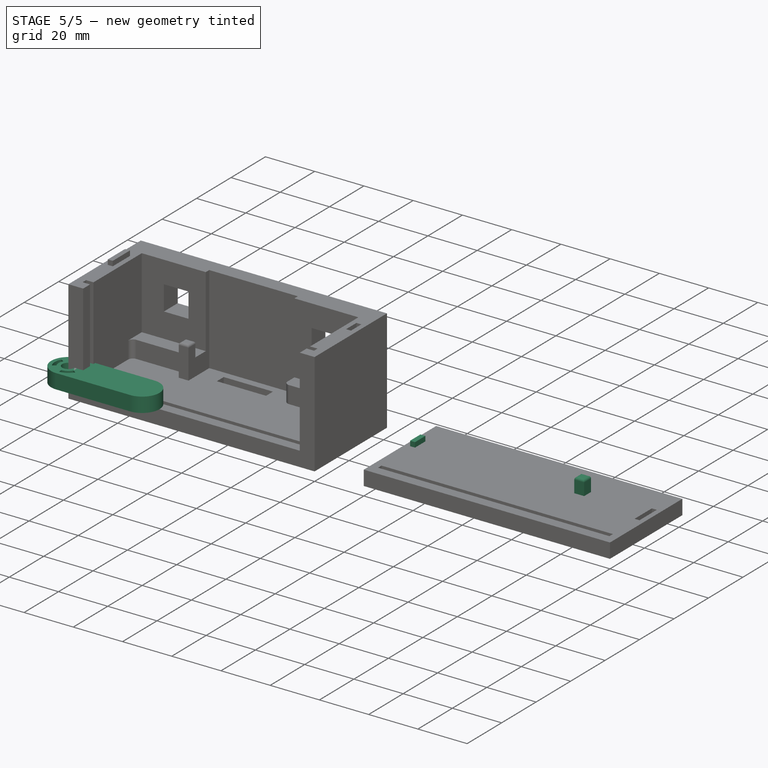
[diagram: stage 5 of 5 — iso view after this stage's code; geometry added in this stage tinted green]
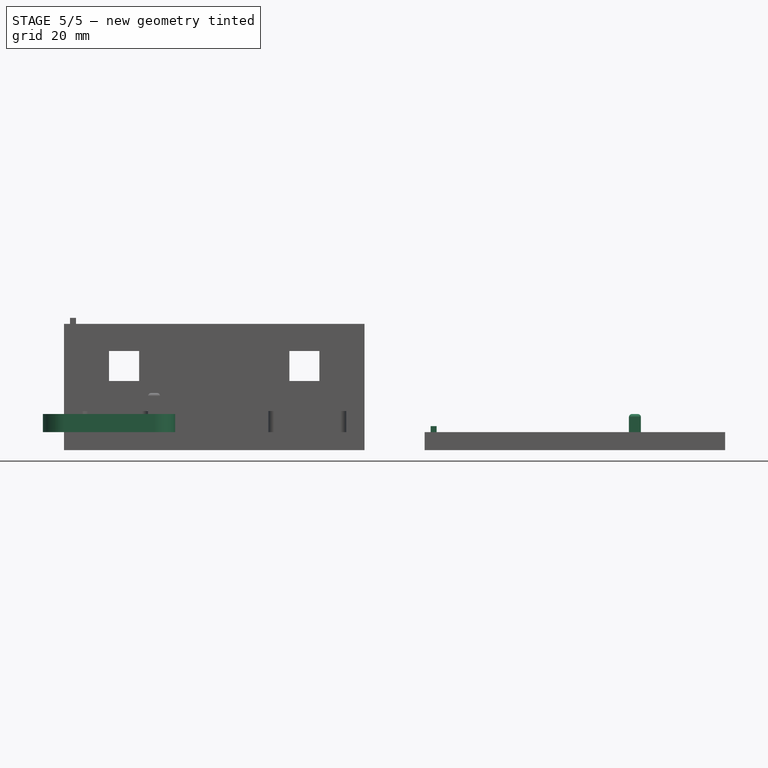
[diagram: stage 5 of 5 — front view after this stage's code; geometry added in this stage tinted green]
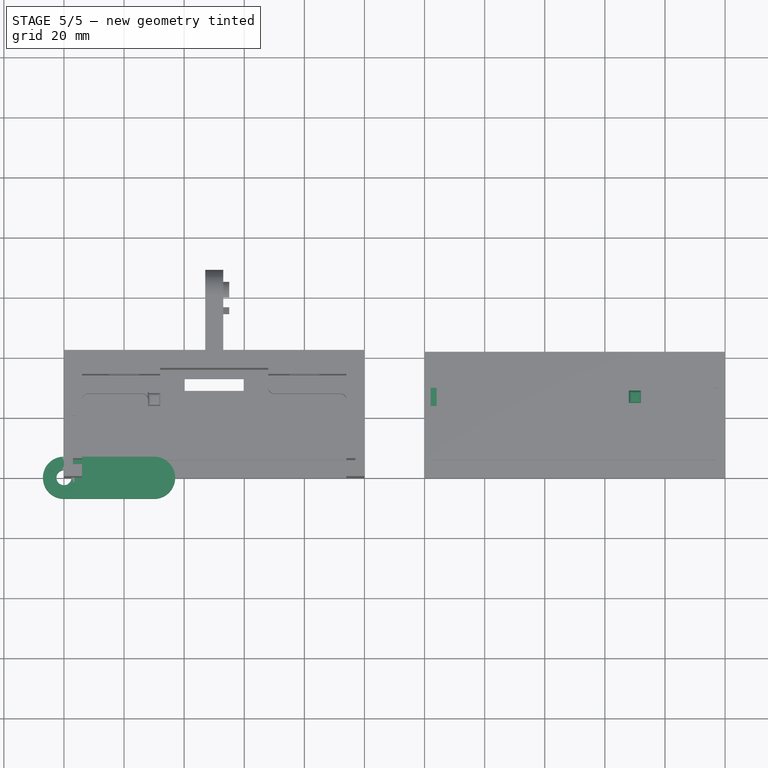
[diagram: stage 5 of 5 — top view after this stage's code; geometry added in this stage tinted green]
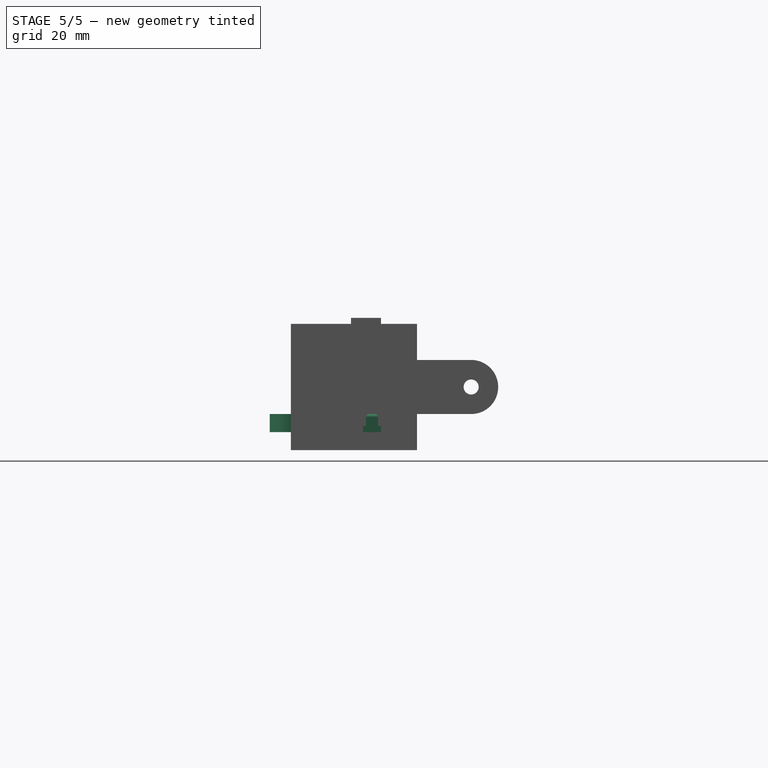
[diagram: stage 5 of 5 — right view after this stage's code; geometry added in this stage tinted green]
FEATURE [Sketcher::SketchObject] Sketch015
  ExternalGeometry = -> [Pocket006]
  MapMode = 5
  Support = -> [Pocket006]
  sketch-geometry (4):
    g0: LineSegment StartX=124 StartY=24 StartZ=0 EndX=122 EndY=24 EndZ=0
    g1: LineSegment StartX=122 StartY=24 StartZ=0 EndX=122 EndY=30 EndZ=0
    g2: LineSegment StartX=122 StartY=30 StartZ=0 EndX=124 EndY=30 EndZ=0
    g3: LineSegment StartX=124 StartY=30 StartZ=0 EndX=124 EndY=24 EndZ=0
  constraints (12):
    c: Coincident(g0,g1)
    c: Coincident(g1,g2)
    c: Coincident(g2,g3)
    c: Coincident(g3,g0)
    c: Horizontal(g0)
    c: Horizontal(g2)
    c: Vertical(g1)
    c: Vertical(g3)
    c: DistanceX(g-3,g0) = 2
    c: DistanceX(g0,g0) = 2
    c: DistanceY(g3,g3) = 6
    c: DistanceY(g-3,g1) = 30
FEATURE [PartDesign::Pad] Pad007
  BaseFeature = -> Pocket006
  Length = 2
  Length2 = 100
  Profile = -> Sketch015
  Type = 0
FEATURE [Sketcher::SketchObject] Sketch016
  MapMode = 5
  Support = -> [XY_Plane002]
  sketch-geometry (4):
    g0: ArcOfCircle CenterX=0 CenterY=0 CenterZ=0 NormalX=0 NormalY=0 NormalZ=1 AngleXU=0 Radius=7 StartAngle=1.5708 EndAngle=4.71239
    g1: ArcOfCircle CenterX=30 CenterY=1e-16 CenterZ=0 NormalX=0 NormalY=0 NormalZ=1 AngleXU=0 Radius=7 StartAngle=4.71239 EndAngle=7.85398
    g2: LineSegment StartX=0 StartY=-7 StartZ=0 EndX=30 EndY=-7 EndZ=0
    g3: LineSegment StartX=-1.1e-15 StartY=7 StartZ=0 EndX=30 EndY=7 EndZ=0
  constraints (9):
    c: Tangent(g0,g3) = 1.5708
    c: Tangent(g0,g2) = -1.5708
    c: Tangent(g2,g1) = -1.5708
    c: Tangent(g3,g1) = 1.5708
    c: Horizontal(g2)
    c: Equal(g0,g1)
    c: DistanceX(g3,g3) = 30
    c: Radius(g1) = 7
    c: Coincident(g0,g-1)
FEATURE [PartDesign::Pad] Pad008
  Length = 6
  Length2 = 100
  Profile = -> Sketch016
  Type = 0
FEATURE [Sketcher::SketchObject] Sketch017
  MapMode = 5
  Placement = pos=(0,0,6) rot=(0,0,1;0rad)
  Support = -> [Pad008]
  sketch-geometry (1):
    g0: Circle CenterX=0 CenterY=0 CenterZ=0 NormalX=0 NormalY=0 NormalZ=1 AngleXU=0 Radius=2.5
  constraints (2):
    c: Radius(g0) = 2.5
    c: Coincident(g0,g-1)
FEATURE [PartDesign::Pocket] Pocket008
  BaseFeature = -> Pad008
  Length = 5
  Length2 = 100
  Profile = -> Sketch017
  Type = 1
FEATURE [Sketcher::SketchObject] Sketch019
  MapMode = 5
  Placement = pos=(0,0,6) rot=(0,0,1;0rad)
  Support = -> [Pocket008]
  sketch-geometry (6):
    g0: ArcOfCircle CenterX=0 CenterY=0 CenterZ=0 NormalX=0 NormalY=0 NormalZ=1 AngleXU=0 Radius=4 StartAngle=2.61799 EndAngle=3.66519
    g1: ArcOfCircle CenterX=0 CenterY=0 CenterZ=0 NormalX=0 NormalY=0 NormalZ=1 AngleXU=0 Radius=5.5 StartAngle=2.61799 EndAngle=3.66519
    g2: LineSegment StartX=-4.76314 StartY=2.75 StartZ=0 EndX=-3.4641 EndY=2 EndZ=0
    g3: LineSegment StartX=-4.76314 StartY=-2.75 StartZ=0 EndX=-3.4641 EndY=-2 EndZ=0
    g4: LineSegment [constr] StartX=-3.4641 StartY=2 StartZ=0 EndX=0 EndY=0 EndZ=0
    g5: LineSegment [constr] StartX=-1 StartY=0 StartZ=0 EndX=0 EndY=0 EndZ=0
  constraints (17):
    c: Perpendicular(g1,g2)
    c: Perpendicular(g1,g3)
    c: Radius(g0) = 4
    c: Coincident(g1,g2)
    c: Coincident(g1,g3)
    c: Coincident(g0,g2)
    c: Coincident(g0,g3)
    c: Coincident(g0,g-1)
    c: Coincident(g1,g0)
    c: Distance(g2) = 1.5
    c: Angle(g2,g3) = 1.0472
    c: Coincident(g4,g0)
    c: Coincident(g4,g0)
    c: Horizontal(g5)
    c: Coincident(g5,g0)
    c: Angle(g4,g5) = 0.523599
    c: DistanceX(g5,g5) = 1
FEATURE [PartDesign::Pocket] Pocket009
  BaseFeature = -> Pocket008
  Length = 2
  Length2 = 100
  Profile = -> Sketch019
  Type = 0
FEATURE [PartDesign::PolarPattern] PolarPattern001
  Angle = 360
  Axis = -> Sketch019 [N_Axis]
  BaseFeature = -> Pocket009
  Occurrences = 3
  Originals = -> [Pocket009]
FEATURE [PartDesign::Body] Body  label="Main"
  Group = -> [Sketch,Pad,Sketch001,Pocket,Sketch002,Pad001,Sketch003,Pad002,Sketch004,Pocket001,LinearPattern,Sketch005,Pocket002,Sketch006,Pocket003,Sketch007,Pad003,LinearPattern001,CopyFillet,Sketch008,Pad004,LinearPattern002,Sketch009,Pocket004,LinearPattern003,DatumPlane,Sketch010,Pad005,Sketch011,Pocket005,Sketch012,Pad006,Sketch014,Pocket007,Sketch018,Pad009,DatumLine,PolarPattern,Sketch020,Pad010]
  Origin = -> Origin
  Tip = -> Pad010
FEATURE [Sketcher::SketchObject] Sketch021
  ExternalGeometry = -> [Pad007]
  MapMode = 5
  Support = -> [Pad007]
  sketch-geometry (4):
    g0: LineSegment StartX=188 StartY=29 StartZ=0 EndX=192 EndY=29 EndZ=0
    g1: LineSegment StartX=192 StartY=29 StartZ=0 EndX=192 EndY=25 EndZ=0
    g2: LineSegment StartX=192 StartY=25 StartZ=0 EndX=188 EndY=25 EndZ=0
    g3: LineSegment StartX=188 StartY=25 StartZ=0 EndX=188 EndY=29 EndZ=0
  constraints (12):
    c: Coincident(g0,g1)
    c: Coincident(g1,g2)
    c: Coincident(g2,g3)
    c: Coincident(g3,g0)
    c: Horizontal(g0)
    c: Horizontal(g2)
    c: Vertical(g1)
    c: Vertical(g3)
    c: DistanceX(g0,g0) = 4
    c: DistanceY(g1,g1) = 4
    c: DistanceY(g0,g-3) = 13
    c: DistanceX(g0,g-3) = 32
FEATURE [PartDesign::Pad] Pad011
  BaseFeature = -> Pad007
  Length = 6
  Length2 = 100
  Profile = -> Sketch021
  Type = 0
FEATURE [Part::Fillet] Fillet001  label="FilletRoof"
  Base = -> Pad011
  Edges = 4 edges r=1: [Edge39,Edge41,Edge43,Edge44]
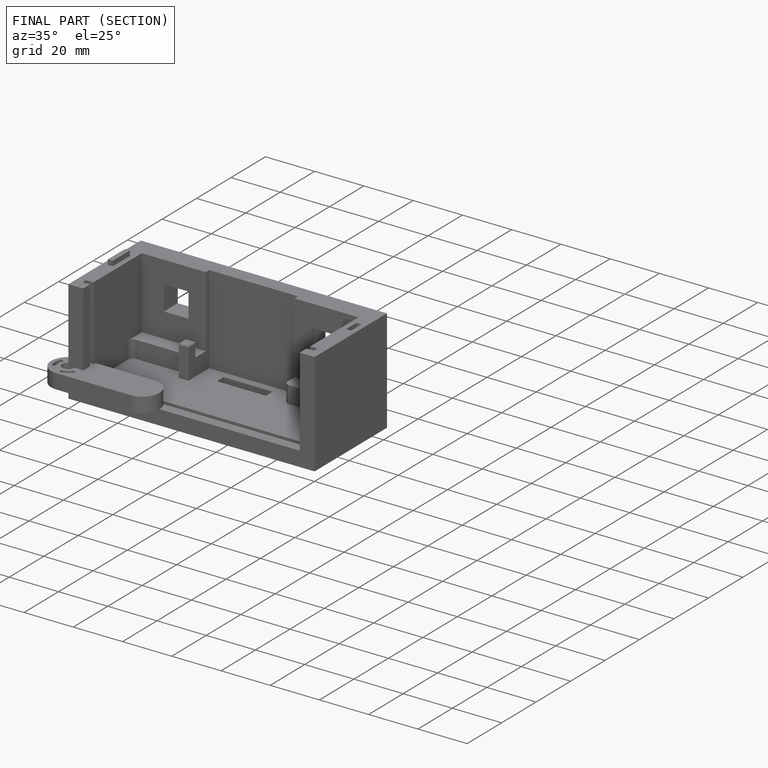
[diagram: finished part — half-section view (interior)]
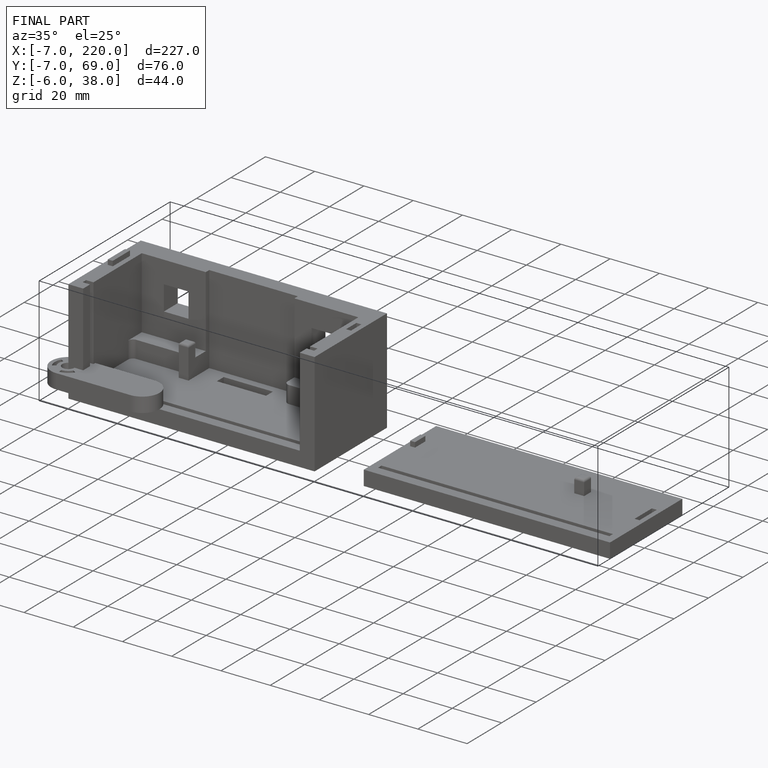
[diagram: finished part — iso view with bounding-box wireframe]
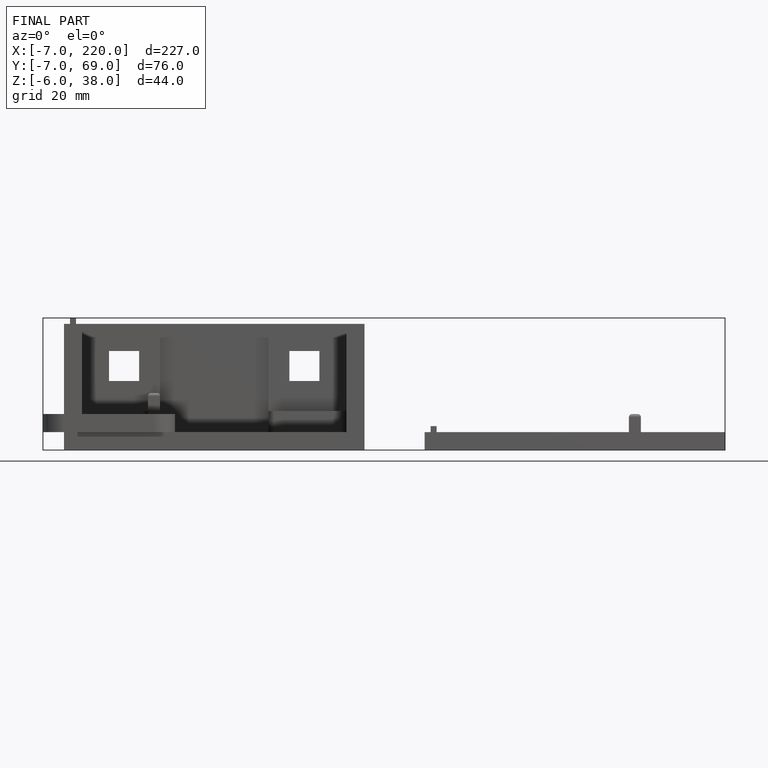
[diagram: finished part — front view with bounding-box wireframe]
